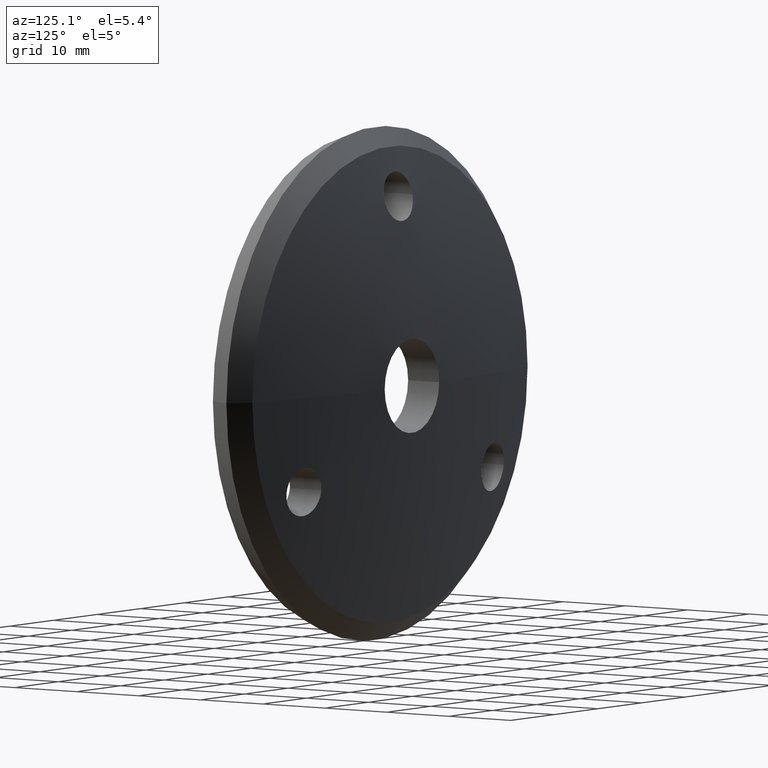
[diagram: clean part render]
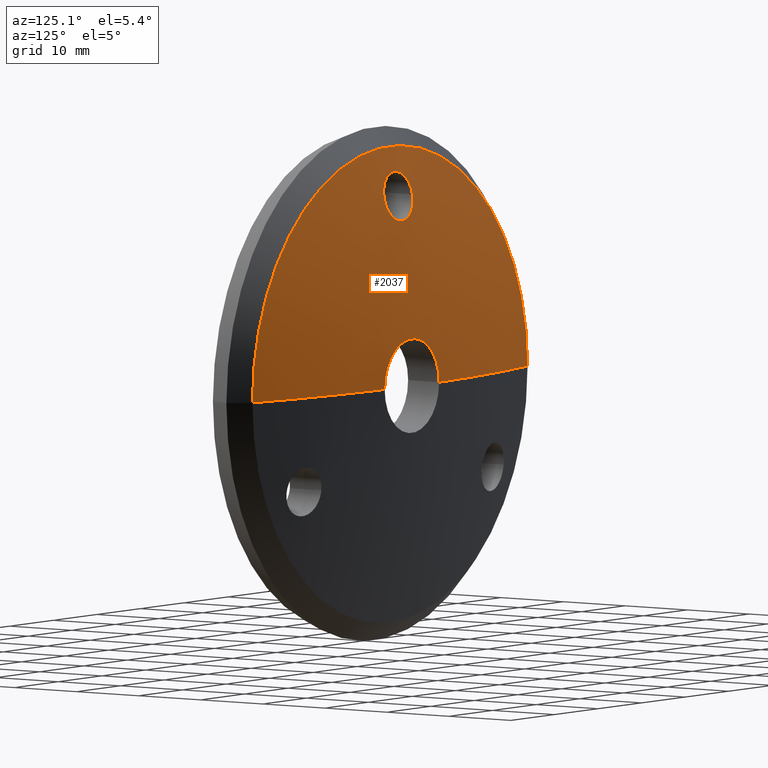
[diagram: same view with one face highlighted and labeled with its STEP entity id]
A machine part, auxiliary view. The second image highlights one B-rep face of the part: STEP entity #2037.
In plain terms, the highlighted spherical surface has radius 137.202 mm.
Its self-contained STEP definition (entity closure, byte-faithful):
#18 = VERTEX_POINT ( 'NONE', #4379 ) ;
#61 = CIRCLE ( 'NONE', #13051, 137.2019220182881440 ) ;
#71 = VERTEX_POINT ( 'NONE', #9703 ) ;
#87 = CARTESIAN_POINT ( 'NONE',  ( -1.447312507633557566, 3.203739160293865407, 22.08224111955242819 ) ) ;
#124 = CARTESIAN_POINT ( 'NONE',  ( -3.147558069541857684, 2.818913735357526207, 24.16360552628098191 ) ) ;
#186 = ORIENTED_EDGE ( 'NONE', *, *, #6474, .T. ) ;
#210 = CARTESIAN_POINT ( 'NONE',  ( 3.086761929130924731, 2.856351837252954162, 23.96137736615557756 ) ) ;
#590 = DIRECTION ( 'NONE',  ( -1.873600393855974325E-19, 1.000000000000000000, -0.000000000000000000 ) ) ;
#697 = CARTESIAN_POINT ( 'NONE',  ( 1.638805857162360713, 2.141202045113756558, 27.81460821087681623 ) ) ;
#784 = CARTESIAN_POINT ( 'NONE',  ( -0.4296926412405789875, 2.064139729453684069, 28.22859259997591508 ) ) ;
#879 = ORIENTED_EDGE ( 'NONE', *, *, #10756, .T. ) ;
#1238 = CARTESIAN_POINT ( 'NONE',  ( 1.993487582803644687, 3.140549368573977596, 22.42441651371716915 ) ) ;
#1283 = CARTESIAN_POINT ( 'NONE',  ( 0.8512705375523558216, 3.245461435386453264, 21.85622563114826633 ) ) ;
#1290 = AXIS2_PLACEMENT_3D ( 'NONE', #2115, #9099, #12212 ) ;
#1390 = DIRECTION ( 'NONE',  ( -1.000000000000000000, 0.000000000000000000, 0.000000000000000000 ) ) ;
#1684 = CARTESIAN_POINT ( 'NONE',  ( -1.451525344963221942, 2.122397092000412488, 27.91564871524049707 ) ) ;
#1718 = ORIENTED_EDGE ( 'NONE', *, *, #12986, .F. ) ;
#1726 = CARTESIAN_POINT ( 'NONE',  ( 2.591430693091575144, 2.297765247906433661, 26.97280218484183578 ) ) ;
#1763 = VERTEX_POINT ( 'NONE', #11110 ) ;
#1815 = CARTESIAN_POINT ( 'NONE',  ( 0.8478326798048484436, 2.079754976856929449, 28.14472379788352896 ) ) ;
#2037 = ADVANCED_FACE ( 'NONE', ( #7184, #12804 ), #10889, .T. ) ;
#2115 = CARTESIAN_POINT ( 'NONE',  ( -9.101148846307532162E-19, 4.857572018106197653, 0.000000000000000000 ) ) ;
#2135 = CARTESIAN_POINT ( 'NONE',  ( 2.592400926990093168, 3.028920962503615311, 23.02850155933839105 ) ) ;
#2314 = CARTESIAN_POINT ( 'NONE',  ( -0.8448889053670142202, 3.245786975537923613, 21.85446186697208404 ) ) ;
#2706 = CARTESIAN_POINT ( 'NONE',  ( -1.995192623916446584, 2.185883768381938097, 27.57446121422133345 ) ) ;
#2753 = CARTESIAN_POINT ( 'NONE',  ( 3.147343003203583400, 2.508573895256347885, 25.83777383042232501 ) ) ;
#2839 = CARTESIAN_POINT ( 'NONE',  ( 2.158243679649520796, 2.211040764635037625, 27.43922263792289939 ) ) ;
#3038 = DIRECTION ( 'NONE',  ( -1.000000000000000000, 0.000000000000000000, -1.224646799147353207E-16 ) ) ;
#3187 = CARTESIAN_POINT ( 'NONE',  ( -3.087135548751946512, 2.856226262518926085, 23.96205627879614397 ) ) ;
#3324 = CARTESIAN_POINT ( 'NONE',  ( 1.056978869651363118, 3.233847866114017311, 21.91914754251754260 ) ) ;
#3769 = CARTESIAN_POINT ( 'NONE',  ( -2.827938646185013116, 2.364116463174978922, 26.61574565204189824 ) ) ;
#3808 = CARTESIAN_POINT ( 'NONE',  ( -3.229650991750099287, 2.586094013946226955, 25.41994228504162834 ) ) ;
#3855 = CARTESIAN_POINT ( 'NONE',  ( 2.457998915579673760, 2.267271262659036779, 27.13683508701813807 ) ) ;
#3902 = CARTESIAN_POINT ( 'NONE',  ( 3.250000000000035527, 2.625035690132901056, 25.20995790703664241 ) ) ;
#4071 = B_SPLINE_CURVE_WITH_KNOTS ( 'NONE', 3,
 ( #10804, #7943, #3808, #9866, #11914, #12905, #3769, #8753, #8800, #4741, #2706, #10898, #1684, #11826, #5862, #784, #10943, #4834, #10841, #1815, #11877, #6789, #697, #8921, #2839, #3855, #1726, #4879, #12006, #8846, #2753, #10041, #3902, #9091 ),
 .UNSPECIFIED., .F., .F.,
 ( 4, 2, 2, 2, 2, 2, 2, 2, 2, 2, 2, 2, 2, 2, 2, 2, 4 ),
 ( 0.002459689802056155145, 0.003100188930541229390, 0.003740688059026303636, 0.004381187187511377881, 0.005021686315996452127, 0.005662185444481526372, 0.006302684572966600618, 0.006943183701451674864, 0.007583682829936749109, 0.008224181958421823355, 0.008864681086906897600, 0.009505180215391971846, 0.01014567934387704609, 0.01078617847236212034, 0.01142667760084719458, 0.01206717672933226883, 0.01270767585781734307 ),
 .UNSPECIFIED. ) ;
#4108 = CARTESIAN_POINT ( 'NONE',  ( 3.232237634562468506E-14, -132.2019220182881725, 0.000000000000000000 ) ) ;
#4119 = CARTESIAN_POINT ( 'NONE',  ( -6.249999999999849898, 4.857572018106197653, -2.314582450388493275E-15 ) ) ;
#4166 = VERTEX_POINT ( 'NONE', #4898 ) ;
#4223 = CARTESIAN_POINT ( 'NONE',  ( 2.160179166512696813, 3.115037854554449037, 22.56252110879610129 ) ) ;
#4262 = DIRECTION ( 'NONE',  ( 0.000000000000000000, 0.000000000000000000, -1.000000000000000000 ) ) ;
#4305 = CARTESIAN_POINT ( 'NONE',  ( -0.2129068674407623152, 3.265094124326113789, 21.74984885859790040 ) ) ;
#4354 = CARTESIAN_POINT ( 'NONE',  ( -0.4253639397680526457, 3.261215829756945794, 21.77086498772657919 ) ) ;
#4379 = CARTESIAN_POINT ( 'NONE',  ( 6.249999999999849898, 4.857572018106197653, 0.000000000000000000 ) ) ;
#4741 = CARTESIAN_POINT ( 'NONE',  ( -2.159813226997773228, 2.211320021217065612, 27.43772102617782238 ) ) ;
#4832 = CIRCLE ( 'NONE', #7287, 31.55000000000002913 ) ;
#4834 = CARTESIAN_POINT ( 'NONE',  ( 0.2122350264836269651, 2.060122765309451598, 28.25016472081201613 ) ) ;
#4879 = CARTESIAN_POINT ( 'NONE',  ( 2.825796034673911716, 2.363444280209488380, 26.61936353794786925 ) ) ;
#4898 = CARTESIAN_POINT ( 'NONE',  ( 31.55000000000005045, 1.323225072109828426, 0.000000000000000000 ) ) ;
#5141 = DIRECTION ( 'NONE',  ( 0.000000000000000000, 0.000000000000000000, 1.000000000000000000 ) ) ;
#5162 = CARTESIAN_POINT ( 'NONE',  ( -1.053402555858736322, 3.234049169235082566, 21.91805687357903309 ) ) ;
#5199 = ORIENTED_EDGE ( 'NONE', *, *, #12635, .F. ) ;
#5203 = CARTESIAN_POINT ( 'NONE',  ( 1.641276669178852732, 3.184425423041860714, 22.18684626569852369 ) ) ;
#5206 = AXIS2_PLACEMENT_3D ( 'NONE', #10290, #5141, #11246 ) ;
#5243 = CARTESIAN_POINT ( 'NONE',  ( -3.250000000000053735, 2.703038059138460181, 24.78916358941254572 ) ) ;
#5494 = CARTESIAN_POINT ( 'NONE',  ( -2.479195016265073111E-19, 1.323225072109827538, 0.000000000000000000 ) ) ;
#5770 = CIRCLE ( 'NONE', #5206, 137.2019220182881440 ) ;
#5821 = VERTEX_POINT ( 'NONE', #4119 ) ;
#5862 = CARTESIAN_POINT ( 'NONE',  ( -0.8500023731105545988, 2.079854029597326459, 28.14419177345497403 ) ) ;
#6157 = DIRECTION ( 'NONE',  ( 1.224646799147353207E-16, 2.294498725216939218E-35, -1.000000000000000000 ) ) ;
#6178 = CARTESIAN_POINT ( 'NONE',  ( -1.990666235088404790, 3.140982044336217527, 22.42207426070429221 ) ) ;
#6208 = EDGE_CURVE ( 'NONE', #12534, #5821, #61, .T. ) ;
#6222 = CARTESIAN_POINT ( 'NONE',  ( -2.844742593811991682, 2.965447188732627914, 23.37185018073568799 ) ) ;
#6270 = CARTESIAN_POINT ( 'NONE',  ( -3.250000000000234479, 2.663955450819719850, 24.99999999999998579 ) ) ;
#6312 = CARTESIAN_POINT ( 'NONE',  ( 3.147436845797350280, 2.819081924996216681, 24.16269766413028108 ) ) ;
#6474 = EDGE_CURVE ( 'NONE', #12534, #4166, #4832, .T. ) ;
#6789 = CARTESIAN_POINT ( 'NONE',  ( 1.451211970268986517, 2.122328351254832324, 27.91601816232683575 ) ) ;
#6848 = EDGE_LOOP ( 'NONE', ( #7517, #186, #879, #1718 ) ) ;
#6974 = CARTESIAN_POINT ( 'NONE',  ( -31.55000000000002203, 1.323225072109828426, -3.863760651309905284E-15 ) ) ;
#7132 = EDGE_LOOP ( 'NONE', ( #5199, #12104 ) ) ;
#7182 = CARTESIAN_POINT ( 'NONE',  ( 3.250000000000035083, 2.663955450819701198, 25.00000000000000000 ) ) ;
#7184 = FACE_OUTER_BOUND ( 'NONE', #6848, .T. ) ;
#7287 = AXIS2_PLACEMENT_3D ( 'NONE', #5494, #590, #1390 ) ;
#7312 = CARTESIAN_POINT ( 'NONE',  ( 2.826324660045448134, 2.963629307223358822, 23.38159412265979853 ) ) ;
#7517 = ORIENTED_EDGE ( 'NONE', *, *, #6208, .F. ) ;
#7943 = CARTESIAN_POINT ( 'NONE',  ( -3.250000000000057732, 2.624848448504859544, 25.21096800729527132 ) ) ;
#8257 = CARTESIAN_POINT ( 'NONE',  ( 3.229532077380934396, 2.742048256695118980, 24.57862550966717308 ) ) ;
#8300 = CARTESIAN_POINT ( 'NONE',  ( -2.609005045049652693, 3.031365110220386239, 23.01532227944802145 ) ) ;
#8555 = AXIS2_PLACEMENT_3D ( 'NONE', #11356, #4262, #9374 ) ;
#8681 = CIRCLE ( 'NONE', #1290, 6.249999999999849898 ) ;
#8753 = CARTESIAN_POINT ( 'NONE',  ( -2.592862076116246861, 2.298095730187556196, 26.97102441712861776 ) ) ;
#8800 = CARTESIAN_POINT ( 'NONE',  ( -2.457675928793718878, 2.267225909551520147, 27.13707884880550836 ) ) ;
#8846 = CARTESIAN_POINT ( 'NONE',  ( 3.086521474847044200, 2.471155308135585926, 26.03936918174807147 ) ) ;
#8921 = CARTESIAN_POINT ( 'NONE',  ( 1.991528001107110812, 2.185390098802928893, 27.57711471203964493 ) ) ;
#9091 = CARTESIAN_POINT ( 'NONE',  ( 3.250000000000035083, 2.663955450819701198, 25.00000000000000000 ) ) ;
#9099 = DIRECTION ( 'NONE',  ( -1.873600393855974325E-19, 1.000000000000000000, -0.000000000000000000 ) ) ;
#9290 = CARTESIAN_POINT ( 'NONE',  ( 0.2174964460757770335, 3.265038039974091255, 21.75015276172783985 ) ) ;
#9374 = DIRECTION ( 'NONE',  ( 1.000000000000000000, 0.000000000000000000, 0.000000000000000000 ) ) ;
#9417 = CARTESIAN_POINT ( 'NONE',  ( 2.459243008238557238, 3.059211127127295260, 22.86463089772988866 ) ) ;
#9525 = B_SPLINE_CURVE_WITH_KNOTS ( 'NONE', 3,
 ( #7182, #12409, #8257, #6312, #210, #10271, #7312, #2135, #9417, #4223, #1238, #5203, #10408, #3324, #1283, #10315, #9290, #4305, #4354, #2314, #5162, #87, #12273, #6178, #12322, #8300, #6222, #3187, #124, #11357, #5243, #6270 ),
 .UNSPECIFIED., .F., .F.,
 ( 4, 2, 2, 2, 2, 2, 2, 2, 2, 2, 2, 2, 2, 2, 2, 4 ),
 ( 0.01270767585781734307, 0.01334777545853620649, 0.01398787505925507164, 0.01462797465997393506, 0.01526807426069279848, 0.01590817386141166190, 0.01654827346213052705, 0.01718837306284939220, 0.01782847266356825389, 0.01846857226428711904, 0.01910867186500598419, 0.01974877146572484587, 0.02038887106644371103, 0.02166907026788143786, 0.02230916986860030995, 0.02294926946931917858 ),
 .UNSPECIFIED. ) ;
#9703 = CARTESIAN_POINT ( 'NONE',  ( 3.250000000000035083, 2.663955450819701198, 25.00000000000000000 ) ) ;
#9866 = CARTESIAN_POINT ( 'NONE',  ( -3.148269258271624516, 2.509291786544712188, 25.83390510773121562 ) ) ;
#10041 = CARTESIAN_POINT ( 'NONE',  ( 3.229621388075112343, 2.585911642594279858, 25.42092595600988147 ) ) ;
#10271 = CARTESIAN_POINT ( 'NONE',  ( 2.926938428538476966, 2.928452702753618464, 23.57176065793905195 ) ) ;
#10290 = CARTESIAN_POINT ( 'NONE',  ( 3.232237634562468506E-14, -132.2019220182881725, 0.000000000000000000 ) ) ;
#10315 = CARTESIAN_POINT ( 'NONE',  ( 0.4331654981397827231, 3.261016725665352833, 21.77194385712158109 ) ) ;
#10408 = CARTESIAN_POINT ( 'NONE',  ( 1.454156640803115685, 3.203136682624971865, 22.08550439017769307 ) ) ;
#10648 = EDGE_CURVE ( 'NONE', #1763, #71, #4071, .T. ) ;
#10756 = EDGE_CURVE ( 'NONE', #4166, #18, #5770, .T. ) ;
#10804 = CARTESIAN_POINT ( 'NONE',  ( -3.250000000000234479, 2.663955450819719850, 24.99999999999998579 ) ) ;
#10841 = CARTESIAN_POINT ( 'NONE',  ( 0.4290341788727823902, 2.064133166246340689, 28.22862783412382726 ) ) ;
#10889 = SPHERICAL_SURFACE ( 'NONE', #8555, 137.2019220182881440 ) ;
#10898 = CARTESIAN_POINT ( 'NONE',  ( -1.638993031047297544, 2.141191289749831750, 27.81466623140985561 ) ) ;
#10943 = CARTESIAN_POINT ( 'NONE',  ( -0.2172502069060955610, 2.060184468585422035, 28.24983334441580496 ) ) ;
#11110 = CARTESIAN_POINT ( 'NONE',  ( -3.250000000000234479, 2.663955450819719850, 24.99999999999998579 ) ) ;
#11246 = DIRECTION ( 'NONE',  ( 1.000000000000000000, 0.000000000000000000, 0.000000000000000000 ) ) ;
#11356 = CARTESIAN_POINT ( 'NONE',  ( 3.232237634562468506E-14, -132.2019220182881725, 0.000000000000000000 ) ) ;
#11357 = CARTESIAN_POINT ( 'NONE',  ( -3.229070758952826914, 2.742535345734074426, 24.57599581313199977 ) ) ;
#11826 = CARTESIAN_POINT ( 'NONE',  ( -1.058284903419117962, 2.091757755129852736, 28.08025426238636513 ) ) ;
#11877 = CARTESIAN_POINT ( 'NONE',  ( 1.052449795979152114, 2.091348125655450918, 28.08245479003592493 ) ) ;
#11914 = CARTESIAN_POINT ( 'NONE',  ( -3.086452789483304038, 2.471119083082714774, 26.03956431140970906 ) ) ;
#12006 = CARTESIAN_POINT ( 'NONE',  ( 2.926464523787954963, 2.398763488267004806, 26.42923353643488582 ) ) ;
#12104 = ORIENTED_EDGE ( 'NONE', *, *, #10648, .F. ) ;
#12212 = DIRECTION ( 'NONE',  ( -1.000000000000000000, 0.000000000000000000, 0.000000000000000000 ) ) ;
#12273 = CARTESIAN_POINT ( 'NONE',  ( -1.634818135974287490, 3.185146625018466793, 22.18294074625081791 ) ) ;
#12322 = CARTESIAN_POINT ( 'NONE',  ( -2.156691685735580677, 3.115633097303470933, 22.55929944123282738 ) ) ;
#12409 = CARTESIAN_POINT ( 'NONE',  ( 3.250000000000035971, 2.702850934307160280, 24.79017305959527206 ) ) ;
#12534 = VERTEX_POINT ( 'NONE', #6974 ) ;
#12635 = EDGE_CURVE ( 'NONE', #71, #1763, #9525, .T. ) ;
#12804 = FACE_BOUND ( 'NONE', #7132, .T. ) ;
#12905 = CARTESIAN_POINT ( 'NONE',  ( -2.926409320641948142, 2.398743684043612490, 26.42934015102282785 ) ) ;
#12986 = EDGE_CURVE ( 'NONE', #5821, #18, #8681, .T. ) ;
#13051 = AXIS2_PLACEMENT_3D ( 'NONE', #4108, #6157, #3038 ) ;